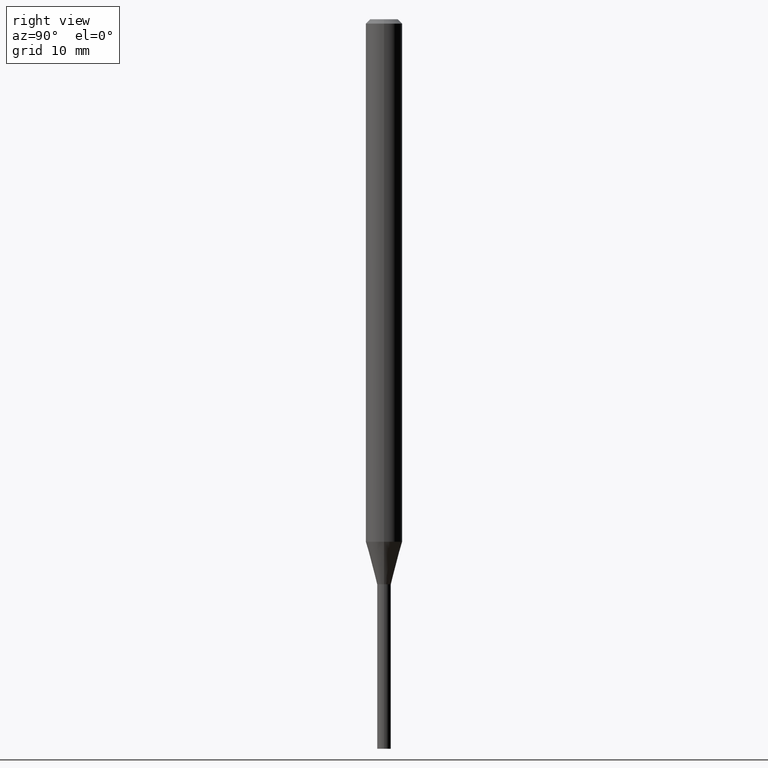
[diagram: clean part render]
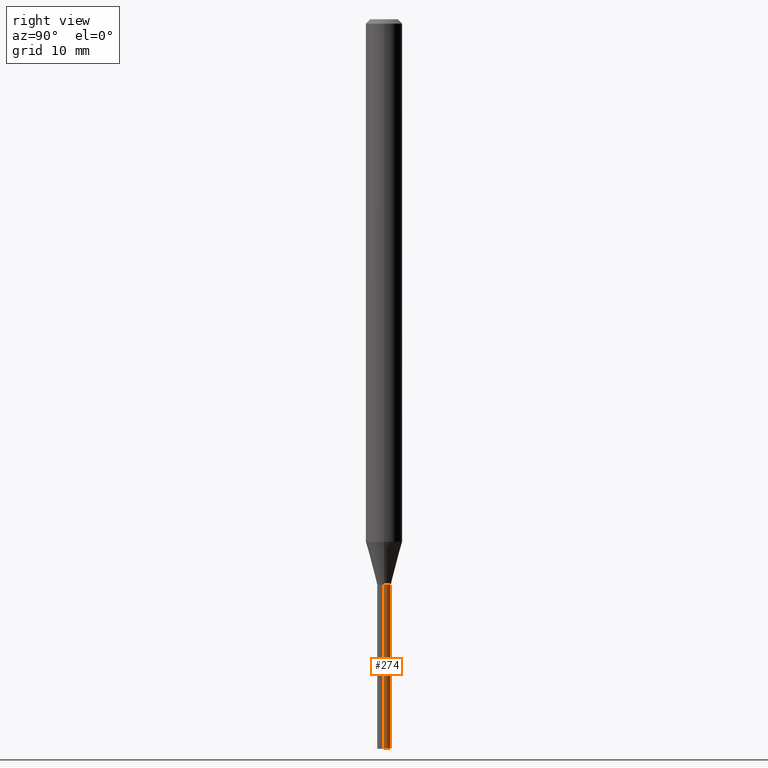
[diagram: same view with one face highlighted and labeled with its STEP entity id]
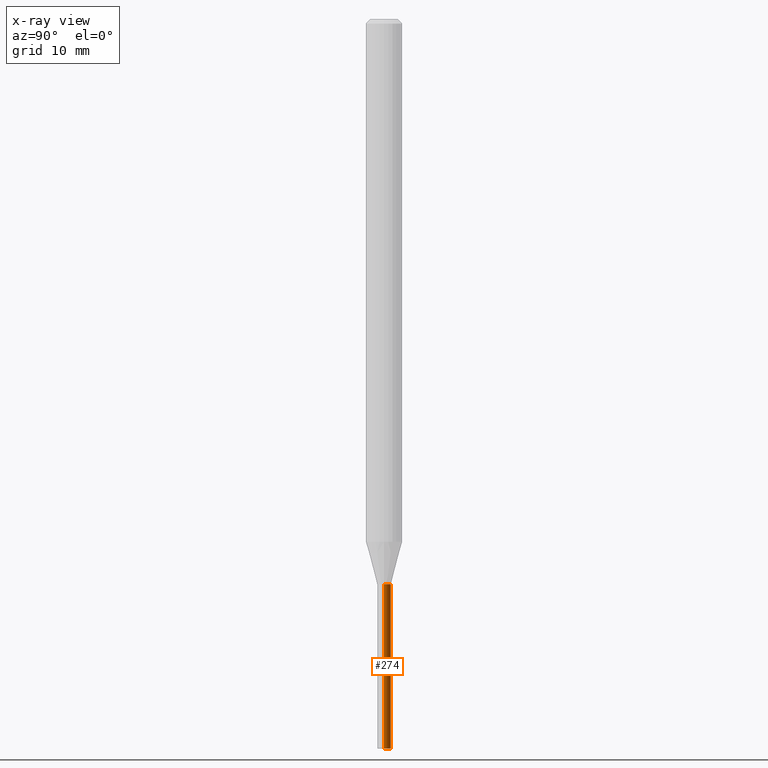
[diagram: x-ray of the same camera — body ghosted, the highlighted face saturated]
A machine part, right view. The second image highlights one B-rep face of the part: STEP entity #274.
The next image is the same camera in x-ray: the body ghosted, the highlighted face saturated — about 0% of this face is hidden behind the body in this view.
In plain terms, the highlighted cylindrical surface (edge-blend (fillet) strip) has radius 0.5969 mm, axis along (-0, 0, 1).
Its self-contained STEP definition (entity closure, byte-faithful):
#3 = CARTESIAN_POINT ( 'NONE',  ( 0.02350000000000000352, -1.640996229256272766E-16, 1.145901542312045115E-30 ) ) ;
#4 = CARTESIAN_POINT ( 'NONE',  ( 0.02350000000000000352, -6.923607494925958466E-15, -1.936000000000000387 ) ) ;
#8 = DIRECTION ( 'NONE',  ( -2.445468806185136597E-29, 3.491481338843145583E-15, 1.000000000000000000 ) ) ;
#12 = AXIS2_PLACEMENT_3D ( 'NONE', #175, #352, #218 ) ;
#19 = CARTESIAN_POINT ( 'NONE',  ( -0.02350000000000000352, -7.577128066650474978E-15, -1.936000000000000387 ) ) ;
#38 = EDGE_CURVE ( 'NONE', #132, #266, #392, .T. ) ;
#51 = VERTEX_POINT ( 'NONE', #69 ) ;
#69 = CARTESIAN_POINT ( 'NONE',  ( -0.02350000000000000352, -7.577128066650474978E-15, -2.500000000000000000 ) ) ;
#74 = VECTOR ( 'NONE', #327, 39.37007874015748143 ) ;
#81 = CYLINDRICAL_SURFACE ( 'NONE', #389, 0.02350000000000000352 ) ;
#83 = CARTESIAN_POINT ( 'NONE',  ( -0.02350000000000000352, 1.669775429036235687E-16, -1.155949746209903035E-30 ) ) ;
#95 = ORIENTED_EDGE ( 'NONE', *, *, #237, .T. ) ;
#132 = VERTEX_POINT ( 'NONE', #434 ) ;
#134 = EDGE_CURVE ( 'NONE', #132, #51, #236, .T. ) ;
#136 = CIRCLE ( 'NONE', #12, 0.02350000000000000352 ) ;
#163 = DIRECTION ( 'NONE',  ( -2.445468806185136877E-29, 3.491481338843145188E-15, 1.000000000000000000 ) ) ;
#171 = ORIENTED_EDGE ( 'NONE', *, *, #38, .F. ) ;
#175 = CARTESIAN_POINT ( 'NONE',  ( 4.734427608774424873E-29, -6.759507872000331609E-15, -1.936000000000000387 ) ) ;
#194 = VECTOR ( 'NONE', #163, 39.37007874015748143 ) ;
#211 = AXIS2_PLACEMENT_3D ( 'NONE', #260, #289, #250 ) ;
#212 = LINE ( 'NONE', #83, #74 ) ;
#214 = FACE_OUTER_BOUND ( 'NONE', #422, .T. ) ;
#218 = DIRECTION ( 'NONE',  ( 1.000000000000000000, -6.982962677686269866E-15, 0.000000000000000000 ) ) ;
#226 = ORIENTED_EDGE ( 'NONE', *, *, #251, .F. ) ;
#236 = CIRCLE ( 'NONE', #211, 0.02350000000000000352 ) ;
#237 = EDGE_CURVE ( 'NONE', #51, #304, #212, .T. ) ;
#250 = DIRECTION ( 'NONE',  ( 1.000000000000000000, -6.982962677686228056E-15, 0.000000000000000000 ) ) ;
#251 = EDGE_CURVE ( 'NONE', #266, #304, #136, .T. ) ;
#253 = DIRECTION ( 'NONE',  ( 1.000000000000000000, -6.982962677686265922E-15, 4.876176775795935793E-29 ) ) ;
#260 = CARTESIAN_POINT ( 'NONE',  ( 6.113672015462842613E-29, -8.728703347107864943E-15, -2.500000000000000000 ) ) ;
#266 = VERTEX_POINT ( 'NONE', #4 ) ;
#274 = ADVANCED_FACE ( 'NONE', ( #214 ), #81, .T. ) ;
#289 = DIRECTION ( 'NONE',  ( -2.445468806185136597E-29, 3.491481338843145583E-15, 1.000000000000000000 ) ) ;
#304 = VERTEX_POINT ( 'NONE', #19 ) ;
#311 = ORIENTED_EDGE ( 'NONE', *, *, #134, .T. ) ;
#327 = DIRECTION ( 'NONE',  ( -2.445468806185136877E-29, 3.491481338843145188E-15, 1.000000000000000000 ) ) ;
#352 = DIRECTION ( 'NONE',  ( -2.445468806185136597E-29, 3.491481338843145583E-15, 1.000000000000000000 ) ) ;
#389 = AXIS2_PLACEMENT_3D ( 'NONE', #432, #8, #253 ) ;
#392 = LINE ( 'NONE', #3, #194 ) ;
#422 = EDGE_LOOP ( 'NONE', ( #311, #95, #226, #171 ) ) ;
#432 = CARTESIAN_POINT ( 'NONE',  ( 0.000000000000000000, 0.000000000000000000, 0.000000000000000000 ) ) ;
#434 = CARTESIAN_POINT ( 'NONE',  ( 0.02350000000000000352, -8.892802970033491011E-15, -2.500000000000000000 ) ) ;